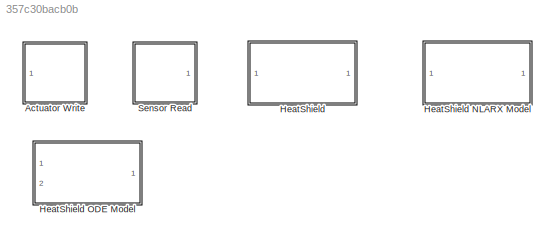
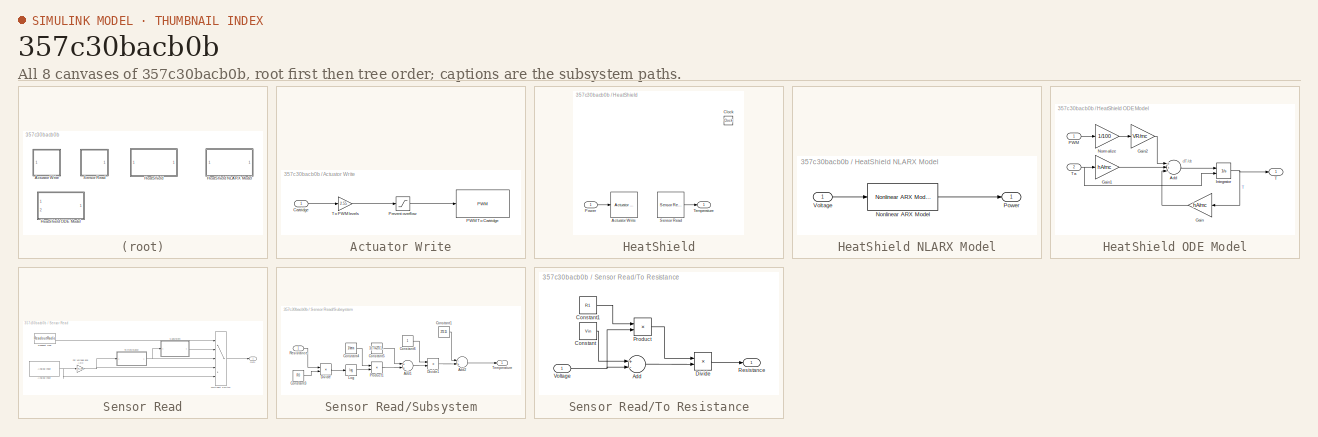
[diagram: thumbnail index - all 8 canvases of the model, root first then tree order]
MODEL slx_357c30bacb0b
KIND library
CONFIG AbsTol = auto
CONFIG EnableMultiTasking = off
CONFIG FixedStep = auto
CONFIG MaxStep = auto
CONFIG MinStep = auto
CONFIG PreLoadFcn = load HeatShield_Models_Greybox.mat
CONFIG RelTol = 1e-3
CONFIG SampleTimeConstraint = Unconstrained
CONFIG Solver = VariableStepAuto
CONFIG SolverName = VariableStepAuto
CONFIG StartTime = 0.0
CONFIG StopTime = 10.0
BLOCK [SubSystem] Actuator Write
  Ports = [1]
  RequestExecContextInheritance = off
BLOCK [Inport] Actuator Write/Cartridge
  IconDisplay = Port number
BLOCK [Reference] Actuator Write/PWM To Cartridge  REF=arduinolib/PWM
  Ports = [1]
  SourceBlock = arduinolib/PWM
  SourceProductBaseCode = ARDUINO
  SourceProductName = Simulink Support Package for Arduino Hardware
  SourceType = Arduino PWM
BLOCK [Saturate] Actuator Write/Prevent overflow
  InputPortMap = u0
  LowerLimit = 0
  Ports = [1, 1]
  UpperLimit = 255
BLOCK [Gain] Actuator Write/To PWM levels
  Gain = 2.55
  OutDataTypeStr = Inherit: Inherit via internal rule
  ParamDataTypeStr = Inherit: Inherit via internal rule
  SaturateOnIntegerOverflow = off
BLOCK [SubSystem] HeatShield
  Ports = [1, 1]
  RequestExecContextInheritance = off
BLOCK [SubSystem] HeatShield NLARX Model
  Ports = [1, 1]
  RequestExecContextInheritance = off
BLOCK [Reference] HeatShield NLARX Model/Nonlinear ARX Model  REF=slident/Models/Nonlinear ARX Model  (lib defined in mdl_f7d4911ca73a)
  Ports = [1, 1]
  SourceBlock = slident/Models/Nonlinear ARX Model
  SourceProductBaseCode = ID
  SourceProductName = System Identification Toolbox
  SourceType = Nonlinear ARX Model
BLOCK [Outport] HeatShield NLARX Model/Power
  IconDisplay = Port number
BLOCK [Inport] HeatShield NLARX Model/Voltage
  IconDisplay = Port number
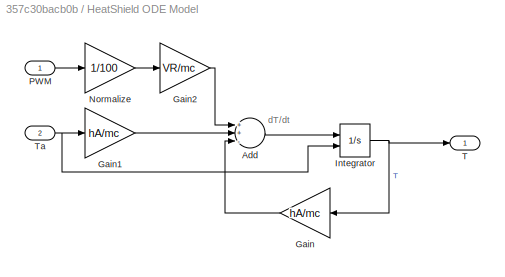
BLOCK [SubSystem] HeatShield ODE Model
  Ports = [2, 1]
  RequestExecContextInheritance = off
BLOCK [Sum] HeatShield ODE Model/Add
  InputSameDT = off
  Inputs = ++-
  OutDataTypeStr = Inherit: Inherit via internal rule
  Ports = [3, 1]
  SaturateOnIntegerOverflow = off
BLOCK [Gain] HeatShield ODE Model/Gain
  Gain = hA/mc
  OutDataTypeStr = Inherit: Inherit via internal rule
  ParamDataTypeStr = Inherit: Inherit via internal rule
  SaturateOnIntegerOverflow = off
BLOCK [Gain] HeatShield ODE Model/Gain1
  Gain = hA/mc
  OutDataTypeStr = Inherit: Inherit via internal rule
  ParamDataTypeStr = Inherit: Inherit via internal rule
  SaturateOnIntegerOverflow = off
BLOCK [Gain] HeatShield ODE Model/Gain2
  Gain = VR/mc
  OutDataTypeStr = Inherit: Inherit via internal rule
  ParamDataTypeStr = Inherit: Inherit via internal rule
  SaturateOnIntegerOverflow = off
BLOCK [Integrator] HeatShield ODE Model/Integrator
  InitialCondition = Ta
  InitialConditionSource = external
  Ports = [2, 1]
BLOCK [Gain] HeatShield ODE Model/Normalize
  Gain = 1/100
  OutDataTypeStr = Inherit: Inherit via internal rule
  ParamDataTypeStr = Inherit: Inherit via internal rule
  SaturateOnIntegerOverflow = off
BLOCK [Inport] HeatShield ODE Model/PWM
  IconDisplay = Port number
BLOCK [Outport] HeatShield ODE Model/T
  IconDisplay = Port number
BLOCK [Inport] HeatShield ODE Model/Ta
  IconDisplay = Port number
  Port = 2
BLOCK [Reference] HeatShield/Actuator Write  REF=$bdroot/Actuator Write
  Ports = [1]
  SourceBlock = $bdroot/Actuator Write
BLOCK [Clock] HeatShield/Clock
BLOCK [Inport] HeatShield/Power
  IconDisplay = Port number
BLOCK [Reference] HeatShield/Sensor Read  REF=$bdroot/Sensor Read
  Ports = [0, 1]
  SourceBlock = $bdroot/Sensor Read
BLOCK [Outport] HeatShield/Temperature
  IconDisplay = Port number
BLOCK [SubSystem] Sensor Read
  Ports = [0, 1]
  RequestExecContextInheritance = off
BLOCK [Reference] Sensor Read/Analog Input  REF=arduinolib/Analog Input
  Ports = [0, 1]
  SourceBlock = arduinolib/Analog Input
  SourceProductBaseCode = ARDUINO
  SourceProductName = Simulink Support Package for Arduino Hardware
  SourceType = Arduino Analog Input
BLOCK [Gain] Sensor Read/For voltage and ADC
  Gain = ADC_Gain
  OutDataTypeStr = Inherit: Inherit via internal rule
  ParamDataTypeStr = Inherit: Inherit via internal rule
  SaturateOnIntegerOverflow = off
BLOCK [MultiPortSwitch] Sensor Read/Multiport Switch
  InputSameDT = off
  Inputs = 4
  Ports = [5, 1]
  SaturateOnIntegerOverflow = off
BLOCK [Outport] Sensor Read/Out1
  IconDisplay = Port number
BLOCK [Constant] Sensor Read/Readout Type
  SampleTime = Ts
  Value = ReadoutRadio
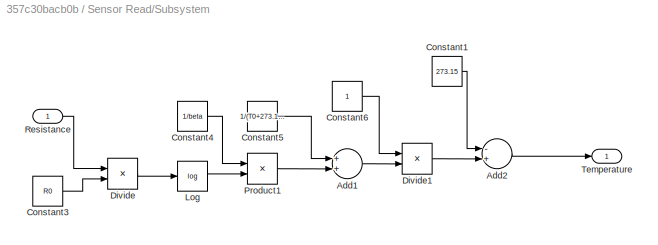
BLOCK [SubSystem] Sensor Read/Subsystem
  Ports = [1, 1]
  RequestExecContextInheritance = off
BLOCK [Sum] Sensor Read/Subsystem/Add1
  InputSameDT = off
  OutDataTypeStr = Inherit: Inherit via internal rule
  Ports = [2, 1]
  SaturateOnIntegerOverflow = off
BLOCK [Sum] Sensor Read/Subsystem/Add2
  InputSameDT = off
  Inputs = -+
  OutDataTypeStr = Inherit: Inherit via internal rule
  Ports = [2, 1]
  SaturateOnIntegerOverflow = off
BLOCK [Constant] Sensor Read/Subsystem/Constant1
  SampleTime = Ts
  Value = 273.15
BLOCK [Constant] Sensor Read/Subsystem/Constant3
  SampleTime = Ts
  Value = R0
BLOCK [Constant] Sensor Read/Subsystem/Constant4
  SampleTime = Ts
  Value = 1/beta
BLOCK [Constant] Sensor Read/Subsystem/Constant5
  SampleTime = Ts
  Value = 1/(T0+273.15)
BLOCK [Constant] Sensor Read/Subsystem/Constant6
  SampleTime = Ts
BLOCK [Product] Sensor Read/Subsystem/Divide
  InputSameDT = off
  Inputs = */
  OutDataTypeStr = Inherit: Inherit via internal rule
  Ports = [2, 1]
  RndMeth = Floor
  SaturateOnIntegerOverflow = off
BLOCK [Product] Sensor Read/Subsystem/Divide1
  InputSameDT = off
  Inputs = */
  OutDataTypeStr = Inherit: Inherit via internal rule
  Ports = [2, 1]
  RndMeth = Floor
  SaturateOnIntegerOverflow = off
BLOCK [Math] Sensor Read/Subsystem/Log
  Operator = log
  Ports = [1, 1]
BLOCK [Product] Sensor Read/Subsystem/Product1
  InputSameDT = off
  OutDataTypeStr = Inherit: Inherit via internal rule
  Ports = [2, 1]
  RndMeth = Floor
  SaturateOnIntegerOverflow = off
BLOCK [Inport] Sensor Read/Subsystem/Resistance
  IconDisplay = Port number
BLOCK [Outport] Sensor Read/Subsystem/Temperature
  IconDisplay = Port number
BLOCK [SubSystem] Sensor Read/To Resistance
  Ports = [1, 1]
  RequestExecContextInheritance = off
BLOCK [Sum] Sensor Read/To Resistance/Add
  InputSameDT = off
  Inputs = +-
  OutDataTypeStr = Inherit: Inherit via internal rule
  Ports = [2, 1]
  SaturateOnIntegerOverflow = off
BLOCK [Constant] Sensor Read/To Resistance/Constant
  SampleTime = Ts
  Value = Vin
BLOCK [Constant] Sensor Read/To Resistance/Constant1
  SampleTime = Ts
  Value = R1
BLOCK [Product] Sensor Read/To Resistance/Divide
  InputSameDT = off
  Inputs = */
  OutDataTypeStr = Inherit: Inherit via internal rule
  Ports = [2, 1]
  RndMeth = Floor
  SaturateOnIntegerOverflow = off
BLOCK [Product] Sensor Read/To Resistance/Product
  InputSameDT = off
  OutDataTypeStr = Inherit: Inherit via internal rule
  Ports = [2, 1]
  RndMeth = Floor
  SaturateOnIntegerOverflow = off
BLOCK [Outport] Sensor Read/To Resistance/Resistance
  IconDisplay = Port number
BLOCK [Inport] Sensor Read/To Resistance/Voltage
  IconDisplay = Port number
ANNOTATION HeatShield ODE Model: dT/dt
LINE Actuator Write/Cartridge:1 -> Actuator Write/To PWM levels:1
LINE Actuator Write/Prevent overflow:1 -> Actuator Write/PWM To Cartridge:1
LINE Actuator Write/To PWM levels:1 -> Actuator Write/Prevent overflow:1
LINE HeatShield NLARX Model/Nonlinear ARX Model:1 -> HeatShield NLARX Model/Power:1
LINE HeatShield NLARX Model/Voltage:1 -> HeatShield NLARX Model/Nonlinear ARX Model:1
LINE HeatShield ODE Model/Add:1 -> HeatShield ODE Model/Integrator:1
LINE HeatShield ODE Model/Gain1:1 -> HeatShield ODE Model/Add:2
LINE HeatShield ODE Model/Gain2:1 -> HeatShield ODE Model/Add:1
LINE HeatShield ODE Model/Gain:1 -> HeatShield ODE Model/Add:3
NET HeatShield ODE Model/Integrator:1 -> HeatShield ODE Model/Gain:1, HeatShield ODE Model/T:1
LINE HeatShield ODE Model/Normalize:1 -> HeatShield ODE Model/Gain2:1
LINE HeatShield ODE Model/PWM:1 -> HeatShield ODE Model/Normalize:1
NET HeatShield ODE Model/Ta:1 -> HeatShield ODE Model/Gain1:1, HeatShield ODE Model/Integrator:2
LINE HeatShield/Power:1 -> HeatShield/Actuator Write:1
LINE HeatShield/Sensor Read:1 -> HeatShield/Temperature:1
NET Sensor Read/Analog Input:1 -> Sensor Read/For voltage and ADC:1, Sensor Read/Multiport Switch:5
NET Sensor Read/For voltage and ADC:1 -> Sensor Read/Multiport Switch:4, Sensor Read/To Resistance:1
LINE Sensor Read/Multiport Switch:1 -> Sensor Read/Out1:1
LINE Sensor Read/Readout Type:1 -> Sensor Read/Multiport Switch:1
LINE Sensor Read/Subsystem/Add1:1 -> Sensor Read/Subsystem/Divide1:2
LINE Sensor Read/Subsystem/Add2:1 -> Sensor Read/Subsystem/Temperature:1
LINE Sensor Read/Subsystem/Constant1:1 -> Sensor Read/Subsystem/Add2:1
LINE Sensor Read/Subsystem/Constant3:1 -> Sensor Read/Subsystem/Divide:2
LINE Sensor Read/Subsystem/Constant4:1 -> Sensor Read/Subsystem/Product1:1
LINE Sensor Read/Subsystem/Constant5:1 -> Sensor Read/Subsystem/Add1:1
LINE Sensor Read/Subsystem/Constant6:1 -> Sensor Read/Subsystem/Divide1:1
LINE Sensor Read/Subsystem/Divide1:1 -> Sensor Read/Subsystem/Add2:2
LINE Sensor Read/Subsystem/Divide:1 -> Sensor Read/Subsystem/Log:1
LINE Sensor Read/Subsystem/Log:1 -> Sensor Read/Subsystem/Product1:2
LINE Sensor Read/Subsystem/Product1:1 -> Sensor Read/Subsystem/Add1:2
LINE Sensor Read/Subsystem/Resistance:1 -> Sensor Read/Subsystem/Divide:1
LINE Sensor Read/Subsystem:1 -> Sensor Read/Multiport Switch:2
LINE Sensor Read/To Resistance/Add:1 -> Sensor Read/To Resistance/Divide:2
LINE Sensor Read/To Resistance/Constant1:1 -> Sensor Read/To Resistance/Product:1
LINE Sensor Read/To Resistance/Constant:1 -> Sensor Read/To Resistance/Add:1
LINE Sensor Read/To Resistance/Divide:1 -> Sensor Read/To Resistance/Resistance:1
LINE Sensor Read/To Resistance/Product:1 -> Sensor Read/To Resistance/Divide:1
NET Sensor Read/To Resistance/Voltage:1 -> Sensor Read/To Resistance/Add:2, Sensor Read/To Resistance/Product:2
NET Sensor Read/To Resistance:1 -> Sensor Read/Multiport Switch:3, Sensor Read/Subsystem:1
note: NET lines group one-source signal fan-out (src -> all destinations, sorted); 1:1 wires keep LINE
